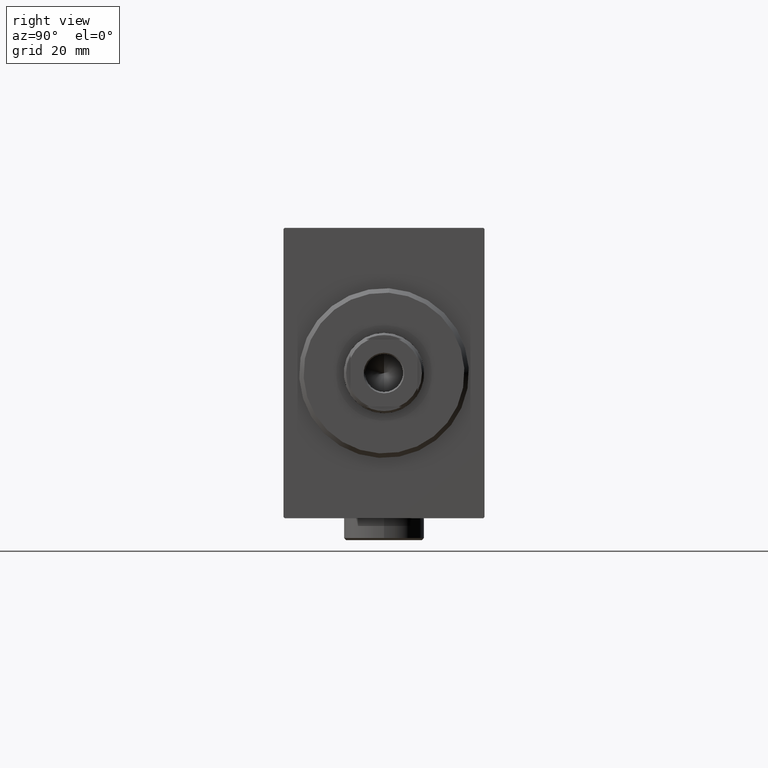
[diagram: clean part render]
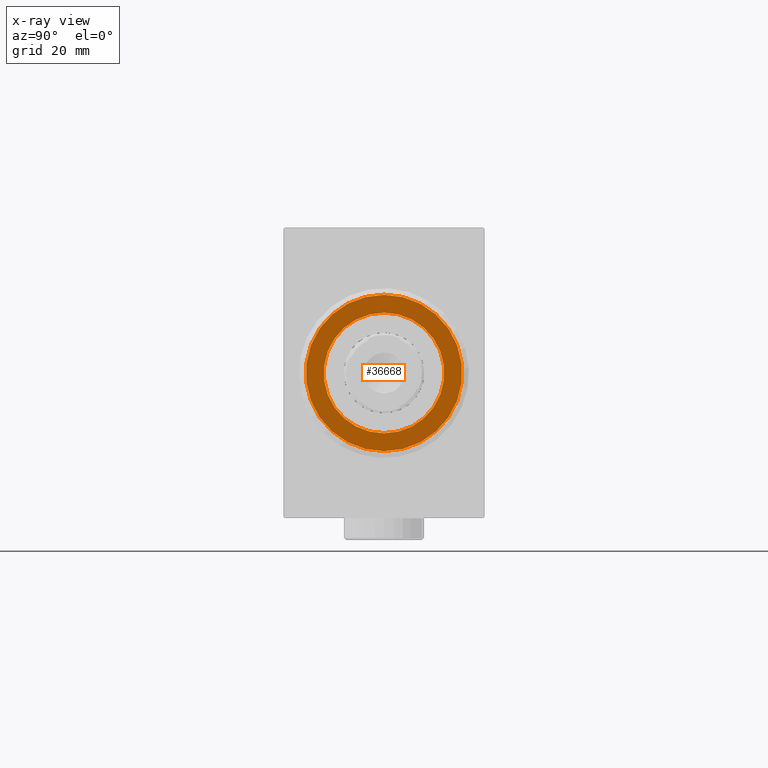
[diagram: x-ray — body ghosted, one internal face saturated and labeled with its STEP entity id]
A machine part, right view, then the same camera in x-ray: the body is ghosted and one INTERNAL B-rep face — a face not visible from any outside direction — is saturated and labeled: STEP entity #36668.
In plain terms, the highlighted planar face has unit normal (1, 0, -0).
Its self-contained STEP definition (entity closure, byte-faithful):
#413 = FACE_BOUND ( 'NONE', #13961, .T. ) ;
#1722 = EDGE_CURVE ( 'NONE', #18607, #33657, #28712, .T. ) ;
#3618 = EDGE_LOOP ( 'NONE', ( #43175, #37663 ) ) ;
#5259 = AXIS2_PLACEMENT_3D ( 'NONE', #30593, #14375, #44538 ) ;
#6698 = AXIS2_PLACEMENT_3D ( 'NONE', #11127, #39045, #8184 ) ;
#8184 = DIRECTION ( 'NONE',  ( 0.000000000000000000, 0.000000000000000000, 1.000000000000000000 ) ) ;
#8556 = AXIS2_PLACEMENT_3D ( 'NONE', #40754, #9891, #40967 ) ;
#9891 = DIRECTION ( 'NONE',  ( -1.000000000000000000, 0.000000000000000000, 0.000000000000000000 ) ) ;
#10849 = CARTESIAN_POINT ( 'NONE',  ( 5.000000000000000000, 2.143131898507868643E-15, -17.50000000000000355 ) ) ;
#11127 = CARTESIAN_POINT ( 'NONE',  ( 5.000000000000000000, 0.000000000000000000, 0.000000000000000000 ) ) ;
#11906 = VERTEX_POINT ( 'NONE', #23000 ) ;
#13167 = EDGE_CURVE ( 'NONE', #33657, #18607, #15982, .T. ) ;
#13961 = EDGE_LOOP ( 'NONE', ( #39914, #43688 ) ) ;
#14375 = DIRECTION ( 'NONE',  ( -1.000000000000000000, 0.000000000000000000, 0.000000000000000000 ) ) ;
#15982 = CIRCLE ( 'NONE', #20278, 17.50000000000000355 ) ;
#16958 = DIRECTION ( 'NONE',  ( -1.000000000000000000, 0.000000000000000000, 0.000000000000000000 ) ) ;
#18478 = DIRECTION ( 'NONE',  ( -1.000000000000000000, 0.000000000000000000, 0.000000000000000000 ) ) ;
#18607 = VERTEX_POINT ( 'NONE', #31668 ) ;
#19538 = VERTEX_POINT ( 'NONE', #25204 ) ;
#20278 = AXIS2_PLACEMENT_3D ( 'NONE', #27943, #18478, #25456 ) ;
#23000 = CARTESIAN_POINT ( 'NONE',  ( 5.000000000000000000, 0.000000000000000000, 13.50000000000000000 ) ) ;
#23291 = EDGE_CURVE ( 'NONE', #11906, #19538, #42014, .T. ) ;
#24286 = FACE_OUTER_BOUND ( 'NONE', #3618, .T. ) ;
#25204 = CARTESIAN_POINT ( 'NONE',  ( 5.000000000000000000, 1.653273178848926867E-15, -13.50000000000000000 ) ) ;
#25456 = DIRECTION ( 'NONE',  ( 0.000000000000000000, 0.000000000000000000, 1.000000000000000000 ) ) ;
#26871 = CARTESIAN_POINT ( 'NONE',  ( 5.000000000000000000, 0.000000000000000000, 0.000000000000000000 ) ) ;
#27659 = AXIS2_PLACEMENT_3D ( 'NONE', #26871, #16958, #40611 ) ;
#27943 = CARTESIAN_POINT ( 'NONE',  ( 5.000000000000000000, 0.000000000000000000, 0.000000000000000000 ) ) ;
#28712 = CIRCLE ( 'NONE', #8556, 17.50000000000000355 ) ;
#30593 = CARTESIAN_POINT ( 'NONE',  ( 5.000000000000000000, 0.000000000000000000, 0.000000000000000000 ) ) ;
#31668 = CARTESIAN_POINT ( 'NONE',  ( 5.000000000000000000, 0.000000000000000000, 17.50000000000000355 ) ) ;
#33657 = VERTEX_POINT ( 'NONE', #10849 ) ;
#33971 = PLANE ( 'NONE',  #5259 ) ;
#36668 = ADVANCED_FACE ( 'NONE', ( #413, #24286 ), #33971, .T. ) ;
#37663 = ORIENTED_EDGE ( 'NONE', *, *, #13167, .T. ) ;
#38363 = CIRCLE ( 'NONE', #6698, 13.50000000000000000 ) ;
#39045 = DIRECTION ( 'NONE',  ( -1.000000000000000000, 0.000000000000000000, 0.000000000000000000 ) ) ;
#39914 = ORIENTED_EDGE ( 'NONE', *, *, #23291, .F. ) ;
#40611 = DIRECTION ( 'NONE',  ( 0.000000000000000000, 0.000000000000000000, 1.000000000000000000 ) ) ;
#40754 = CARTESIAN_POINT ( 'NONE',  ( 5.000000000000000000, 0.000000000000000000, 0.000000000000000000 ) ) ;
#40967 = DIRECTION ( 'NONE',  ( 0.000000000000000000, 0.000000000000000000, 1.000000000000000000 ) ) ;
#42014 = CIRCLE ( 'NONE', #27659, 13.50000000000000000 ) ;
#42311 = EDGE_CURVE ( 'NONE', #19538, #11906, #38363, .T. ) ;
#43175 = ORIENTED_EDGE ( 'NONE', *, *, #1722, .T. ) ;
#43688 = ORIENTED_EDGE ( 'NONE', *, *, #42311, .F. ) ;
#44538 = DIRECTION ( 'NONE',  ( 0.000000000000000000, 0.000000000000000000, 1.000000000000000000 ) ) ;